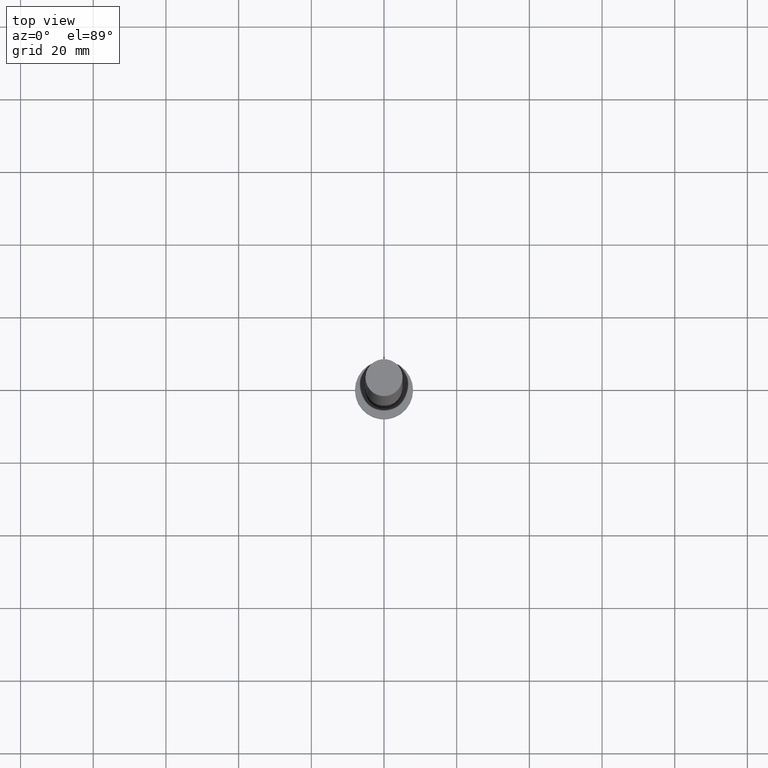
[diagram: clean part render]
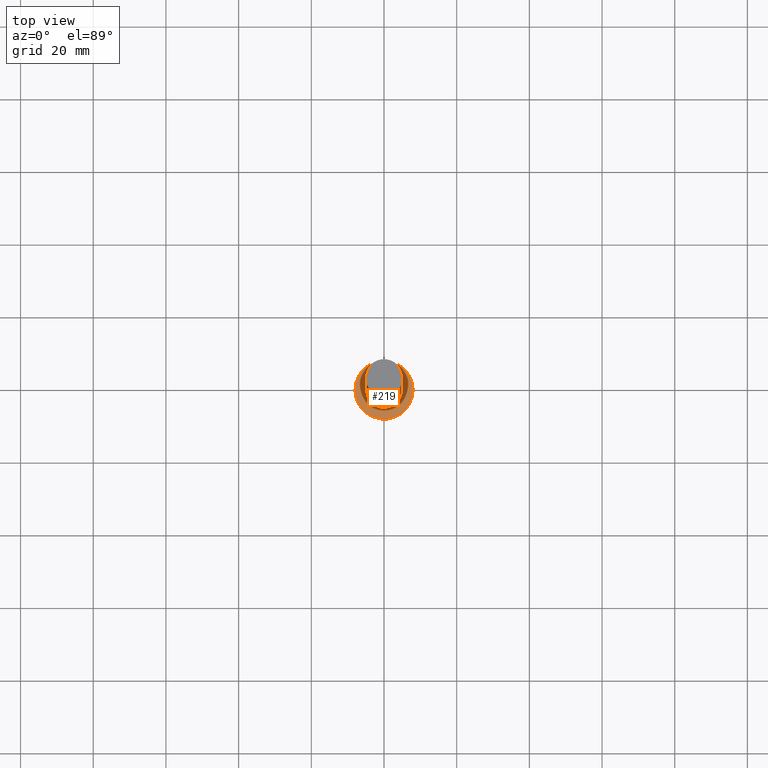
[diagram: same view with one face highlighted and labeled with its STEP entity id]
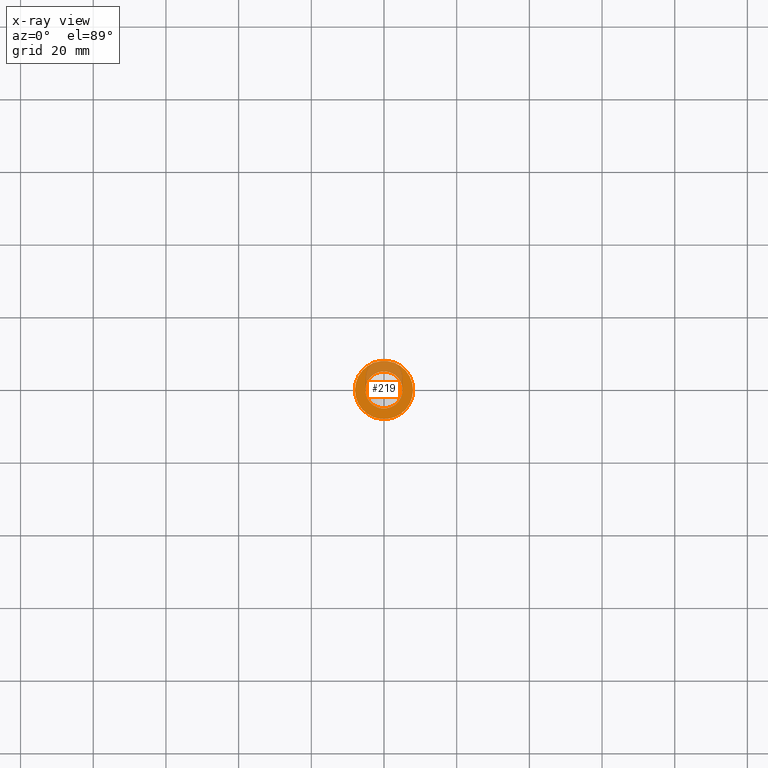
[diagram: x-ray of the same camera — body ghosted, the highlighted face saturated]
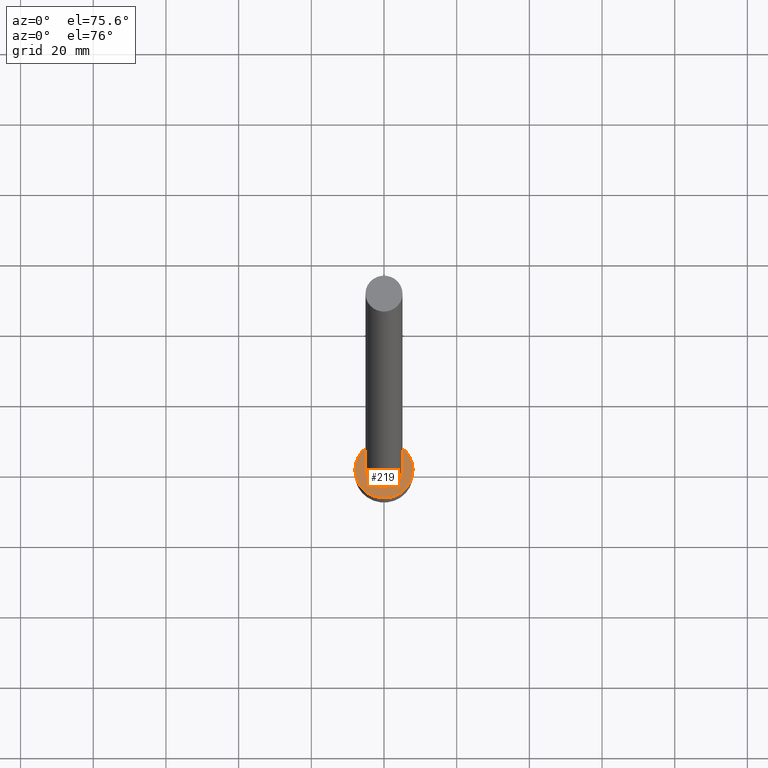
[diagram: same view with one face highlighted and labeled with its STEP entity id]
A machine part, top view. The second image highlights one B-rep face of the part: STEP entity #219.
The next image is the same camera in x-ray: the body ghosted, the highlighted face saturated — about 27% of this face is hidden behind the body in this view.
A second angle (auxiliary view) of the same face is appended — the face is thin or edge-on in the first view.
In plain terms, the highlighted planar face has unit normal (0, 0, 1).
Its self-contained STEP definition (entity closure, byte-faithful):
#3 = CARTESIAN_POINT ( 'NONE',  ( 8.000000000000000000, 9.797174393178825657E-16, 5.000000000000000000 ) ) ;
#6 = ORIENTED_EDGE ( 'NONE', *, *, #137, .T. ) ;
#16 = VERTEX_POINT ( 'NONE', #93 ) ;
#22 = DIRECTION ( 'NONE',  ( 0.000000000000000000, 0.000000000000000000, 1.000000000000000000 ) ) ;
#26 = EDGE_CURVE ( 'NONE', #16, #134, #28, .T. ) ;
#28 = CIRCLE ( 'NONE', #172, 8.000000000000000000 ) ;
#29 = CARTESIAN_POINT ( 'NONE',  ( 0.000000000000000000, 0.000000000000000000, 5.000000000000000000 ) ) ;
#30 = FACE_OUTER_BOUND ( 'NONE', #120, .T. ) ;
#44 = CIRCLE ( 'NONE', #205, 5.099999999999999645 ) ;
#47 = DIRECTION ( 'NONE',  ( 0.000000000000000000, 0.000000000000000000, 1.000000000000000000 ) ) ;
#49 = DIRECTION ( 'NONE',  ( 1.000000000000000000, 0.000000000000000000, 0.000000000000000000 ) ) ;
#64 = DIRECTION ( 'NONE',  ( 0.000000000000000000, 0.000000000000000000, 1.000000000000000000 ) ) ;
#65 = AXIS2_PLACEMENT_3D ( 'NONE', #29, #204, #166 ) ;
#66 = CIRCLE ( 'NONE', #179, 8.000000000000000000 ) ;
#70 = CARTESIAN_POINT ( 'NONE',  ( 5.099999999999999645, 6.245698675651500839E-16, 5.000000000000000000 ) ) ;
#72 = ORIENTED_EDGE ( 'NONE', *, *, #121, .F. ) ;
#83 = PLANE ( 'NONE',  #65 ) ;
#86 = FACE_BOUND ( 'NONE', #96, .T. ) ;
#93 = CARTESIAN_POINT ( 'NONE',  ( -8.000000000000000000, 0.000000000000000000, 5.000000000000000000 ) ) ;
#96 = EDGE_LOOP ( 'NONE', ( #165, #72 ) ) ;
#101 = DIRECTION ( 'NONE',  ( 1.000000000000000000, 0.000000000000000000, 0.000000000000000000 ) ) ;
#102 = CARTESIAN_POINT ( 'NONE',  ( 0.000000000000000000, 0.000000000000000000, 5.000000000000000000 ) ) ;
#108 = CARTESIAN_POINT ( 'NONE',  ( 0.000000000000000000, 0.000000000000000000, 5.000000000000000000 ) ) ;
#120 = EDGE_LOOP ( 'NONE', ( #154, #6 ) ) ;
#121 = EDGE_CURVE ( 'NONE', #243, #217, #218, .T. ) ;
#124 = CARTESIAN_POINT ( 'NONE',  ( -5.099999999999999645, 0.000000000000000000, 5.000000000000000000 ) ) ;
#134 = VERTEX_POINT ( 'NONE', #3 ) ;
#137 = EDGE_CURVE ( 'NONE', #134, #16, #66, .T. ) ;
#154 = ORIENTED_EDGE ( 'NONE', *, *, #26, .T. ) ;
#155 = CARTESIAN_POINT ( 'NONE',  ( 0.000000000000000000, 0.000000000000000000, 5.000000000000000000 ) ) ;
#165 = ORIENTED_EDGE ( 'NONE', *, *, #233, .F. ) ;
#166 = DIRECTION ( 'NONE',  ( 1.000000000000000000, 0.000000000000000000, -0.000000000000000000 ) ) ;
#172 = AXIS2_PLACEMENT_3D ( 'NONE', #102, #22, #101 ) ;
#179 = AXIS2_PLACEMENT_3D ( 'NONE', #155, #64, #247 ) ;
#183 = DIRECTION ( 'NONE',  ( 1.000000000000000000, 0.000000000000000000, 0.000000000000000000 ) ) ;
#201 = AXIS2_PLACEMENT_3D ( 'NONE', #223, #47, #49 ) ;
#204 = DIRECTION ( 'NONE',  ( 0.000000000000000000, 0.000000000000000000, 1.000000000000000000 ) ) ;
#205 = AXIS2_PLACEMENT_3D ( 'NONE', #108, #207, #183 ) ;
#207 = DIRECTION ( 'NONE',  ( 0.000000000000000000, 0.000000000000000000, 1.000000000000000000 ) ) ;
#217 = VERTEX_POINT ( 'NONE', #124 ) ;
#218 = CIRCLE ( 'NONE', #201, 5.099999999999999645 ) ;
#219 = ADVANCED_FACE ( 'NONE', ( #86, #30 ), #83, .T. ) ;
#223 = CARTESIAN_POINT ( 'NONE',  ( 0.000000000000000000, 0.000000000000000000, 5.000000000000000000 ) ) ;
#233 = EDGE_CURVE ( 'NONE', #217, #243, #44, .T. ) ;
#243 = VERTEX_POINT ( 'NONE', #70 ) ;
#247 = DIRECTION ( 'NONE',  ( 1.000000000000000000, 0.000000000000000000, 0.000000000000000000 ) ) ;